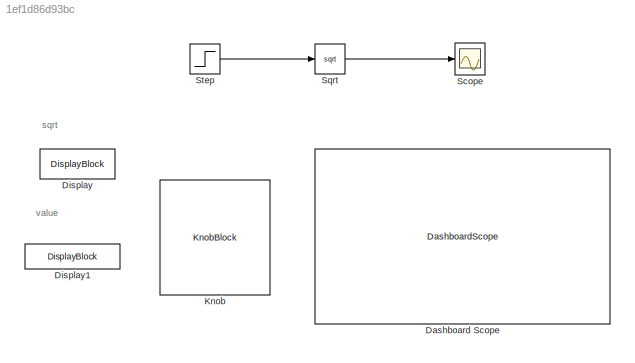
MODEL slx_1ef1d86d93bc
KIND model
CONFIG AbsTol = auto
CONFIG EnableMultiTasking = off
CONFIG FixedStep = 1
CONFIG MaxStep = auto
CONFIG MinStep = auto
CONFIG RelTol = 1e-3
CONFIG SampleTimeConstraint = Unconstrained
CONFIG SolverName = FixedStepAuto
CONFIG StartTime = 0.0
CONFIG StopTime = 100
BLOCK [DashboardScope] Dashboard Scope
  ScaleAtStop = off
  UpdateMode = Scroll
  Ymax = 100
  Ymin = -1
BLOCK [DisplayBlock] Display
  LabelPosition = Hide
  Layout = Fill available space
  Transparency = 1
BLOCK [DisplayBlock] Display1
  LabelPosition = Hide
  Transparency = 1
BLOCK [KnobBlock] Knob
BLOCK [Scope] Scope
  Floating = off
  NumInputPorts = 1
  ScopeSpecificationString = Simulink.scopes.TimeScopeBlockCfg('CurrentConfiguration', extmgr.ConfigurationSet(extmgr.Configuration('Core','General UI',true),extmgr.Configuration('Core','Source UI',true),extmgr.Configuration('Sources','WiredSimulink',true),extmgr.Configuration('Visuals','Time Domain',true,'SerializedDisplays',{struct('MinYLimReal','-11.17635','MaxYLimReal','100.58718','YLabelReal','','MinYLimMag','0.00000','M...<+1417ch>
BLOCK [Sqrt] Sqrt
BLOCK [Step] Step
  After = 9.18547503153483
  SampleTime = 0
ANNOTATION (root): sqrt
ANNOTATION (root): value
LINE Sqrt:1 -> Scope:1
LINE Step:1 -> Sqrt:1
